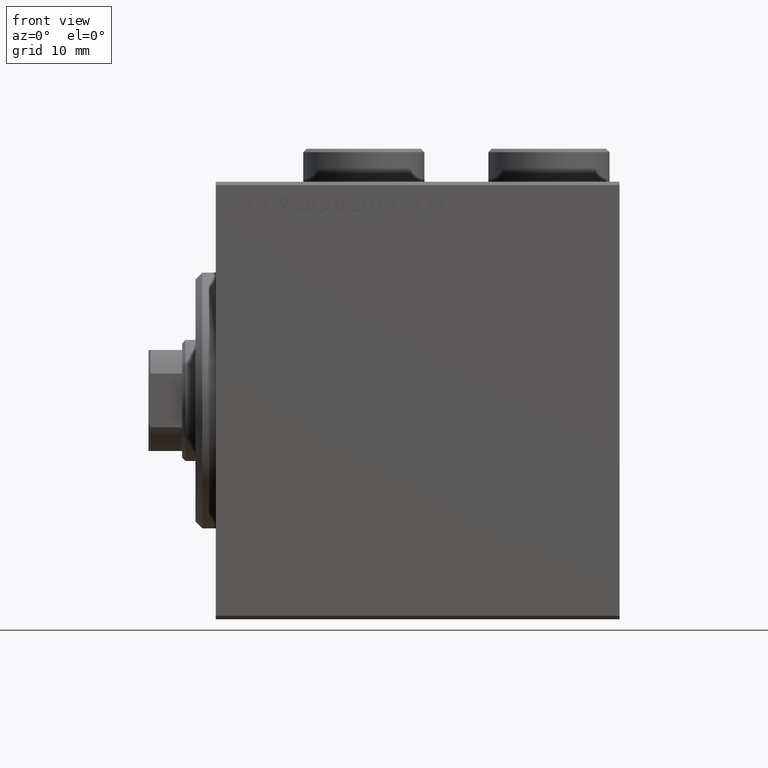
[diagram: clean part render]
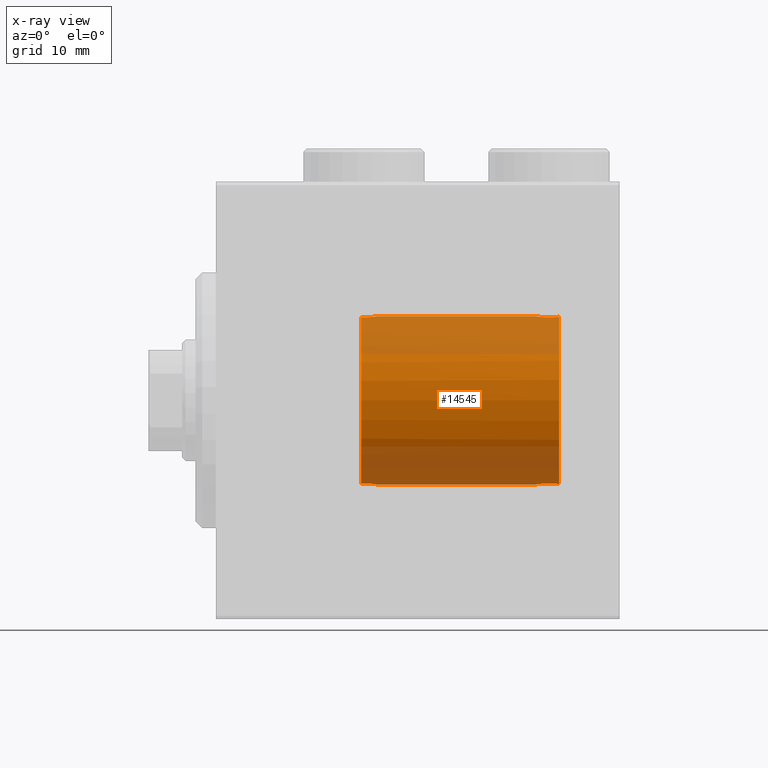
[diagram: x-ray — body ghosted, one internal face saturated and labeled with its STEP entity id]
A machine part, front view, then the same camera in x-ray: the body is ghosted and one INTERNAL B-rep face — a face not visible from any outside direction — is saturated and labeled: STEP entity #14545.
In plain terms, the highlighted cylindrical surface (partial cylindrical patch) has radius 12.5 mm, axis along (-1, -0, -0).
Its self-contained STEP definition (entity closure, byte-faithful):
#64 = CARTESIAN_POINT ( 'NONE',  ( 48.98217734449560368, -1.942370230151947874, -12.34837774004982869 ) ) ;
#536 = CARTESIAN_POINT ( 'NONE',  ( 48.10833807546940477, -1.450617801495374115, 12.41618001124376569 ) ) ;
#550 = AXIS2_PLACEMENT_3D ( 'NONE', #27432, #3245, #23970 ) ;
#1206 = CARTESIAN_POINT ( 'NONE',  ( 47.74046257760226553, -0.9719654118822560473, 12.46326730267306893 ) ) ;
#1386 = CARTESIAN_POINT ( 'NONE',  ( 23.74294733412908087, -0.9918218938939140639, 12.46129877372112560 ) ) ;
#2210 = CARTESIAN_POINT ( 'NONE',  ( 50.86753843343830539, -1.473072954130703716, -12.41381773772906527 ) ) ;
#2747 = VECTOR ( 'NONE', #44399, 1000.000000000000000 ) ;
#3245 = DIRECTION ( 'NONE',  ( -1.000000000000000000, 0.000000000000000000, 0.000000000000000000 ) ) ;
#3287 = CARTESIAN_POINT ( 'NONE',  ( 47.74095410924028471, -0.9729659830398046383, -12.46319390912297642 ) ) ;
#3914 = ORIENTED_EDGE ( 'NONE', *, *, #21186, .T. ) ;
#5287 = CARTESIAN_POINT ( 'NONE',  ( 23.02541152124766199, -1.723401116109633424, 12.38080331456884053 ) ) ;
#5608 = CARTESIAN_POINT ( 'NONE',  ( 23.48330282664397828, -1.349602160395881656, -12.42747329027376324 ) ) ;
#5881 = CARTESIAN_POINT ( 'NONE',  ( 49.58383975051394543, -2.008412574410691320, -12.33760202391980165 ) ) ;
#6121 = CARTESIAN_POINT ( 'NONE',  ( 49.18080577472711923, -1.984657456431631495, -12.34144560212908281 ) ) ;
#6297 = CARTESIAN_POINT ( 'NONE',  ( 21.60000000000000142, -1.959591794226549277, -12.34544450394557558 ) ) ;
#6970 = CARTESIAN_POINT ( 'NONE',  ( 49.78760707246136263, -1.989402790922017106, -12.34077351860467253 ) ) ;
#7188 = CARTESIAN_POINT ( 'NONE',  ( 47.97135785540805131, -1.305434197395114015, -12.43276746250906051 ) ) ;
#7440 = CARTESIAN_POINT ( 'NONE',  ( 48.42738723239509113, -1.700151984080955359, 12.38447824127646157 ) ) ;
#7484 = CARTESIAN_POINT ( 'NONE',  ( 51.00000000000000711, -1.322875655532297579, -12.42980289465605459 ) ) ;
#7800 = VERTEX_POINT ( 'NONE', #7484 ) ;
#8562 = CARTESIAN_POINT ( 'NONE',  ( 50.86744664609396693, -1.473177031196406528, 12.41380666104364927 ) ) ;
#8608 = CARTESIAN_POINT ( 'NONE',  ( 21.60000000000000142, 0.000000000000000000, 0.000000000000000000 ) ) ;
#8740 = CARTESIAN_POINT ( 'NONE',  ( 23.48219734671673464, -1.350829357940619868, 12.42734021317595960 ) ) ;
#8794 = CARTESIAN_POINT ( 'NONE',  ( 49.58327474022404147, -2.008486068678527303, 12.33759019476317320 ) ) ;
#8977 = CARTESIAN_POINT ( 'NONE',  ( 24.00000000000000711, -0.2984775718359609087, 12.50000000000000178 ) ) ;
#10432 = CARTESIAN_POINT ( 'NONE',  ( 47.53135420449311255, -0.4063377816220735683, -12.49487917148008975 ) ) ;
#10982 = FACE_OUTER_BOUND ( 'NONE', #37358, .T. ) ;
#11137 = ORIENTED_EDGE ( 'NONE', *, *, #24643, .T. ) ;
#11849 = ORIENTED_EDGE ( 'NONE', *, *, #25434, .F. ) ;
#12425 = CARTESIAN_POINT ( 'NONE',  ( 22.18929723264292875, -1.996555189909668071, 12.33952093030028863 ) ) ;
#12757 = CARTESIAN_POINT ( 'NONE',  ( 23.93314724436488916, -0.5913231332011221753, -12.48885326101652815 ) ) ;
#12861 = VERTEX_POINT ( 'NONE', #28241 ) ;
#13022 = CARTESIAN_POINT ( 'NONE',  ( 47.65211717059433738, -0.7912052260496477141, -12.47642217115676999 ) ) ;
#13219 = CARTESIAN_POINT ( 'NONE',  ( 21.88865765798350793, -2.018513791927082579, -12.33609181817095823 ) ) ;
#13268 = CARTESIAN_POINT ( 'NONE',  ( 51.00000000000000711, 0.000000000000000000, 12.50000000000000000 ) ) ;
#13896 = VERTEX_POINT ( 'NONE', #33307 ) ;
#14071 = VERTEX_POINT ( 'NONE', #34451 ) ;
#14545 = ADVANCED_FACE ( 'NONE', ( #10982 ), #34976, .F. ) ;
#14908 = CARTESIAN_POINT ( 'NONE',  ( 47.49999999999999289, -7.266434456262306043E-23, 12.50000000000000000 ) ) ;
#15041 = VERTEX_POINT ( 'NONE', #17955 ) ;
#15575 = VECTOR ( 'NONE', #27311, 1000.000000000000000 ) ;
#16159 = CARTESIAN_POINT ( 'NONE',  ( 50.17771318596242480, -1.892444135111798875, 12.35601370027699630 ) ) ;
#16259 = VERTEX_POINT ( 'NONE', #14908 ) ;
#16660 = CARTESIAN_POINT ( 'NONE',  ( 23.66470425100231623, -1.118200797518082767, -12.45042751668564307 ) ) ;
#17783 = CARTESIAN_POINT ( 'NONE',  ( 48.42854688107839678, -1.700931018996106436, -12.38437300663065876 ) ) ;
#17955 = CARTESIAN_POINT ( 'NONE',  ( 51.00000000000000711, -1.322875655532295580, 12.42980289465605281 ) ) ;
#18192 = CIRCLE ( 'NONE', #35887, 12.50000000000000000 ) ;
#18527 = B_SPLINE_CURVE_WITH_KNOTS ( 'NONE', 3,
 ( #38791, #2210, #44608, #27923, #28159, #6970, #5881, #6121, #64, #27070, #17783, #23620, #7188, #3287, #13022, #10432, #41164, #45454 ),
 .UNSPECIFIED., .F., .F.,
 ( 4, 2, 2, 2, 2, 2, 2, 2, 4 ),
 ( 0.007704009012989673083, 0.008306559026792689412, 0.008909109040595705742, 0.009511659054398720337, 0.01011420906820173667, 0.01071675908200475300, 0.01131930909580776759, 0.01192185910961078392, 0.01252440912341380025 ),
 .UNSPECIFIED. ) ;
#18867 = CARTESIAN_POINT ( 'NONE',  ( 22.62167100186951885, -1.906644611147662038, 12.35378414576433848 ) ) ;
#20399 = CIRCLE ( 'NONE', #550, 12.50000000000000000 ) ;
#20400 = CARTESIAN_POINT ( 'NONE',  ( 51.00000000000000711, 1.530808498934191521E-15, -12.50000000000000000 ) ) ;
#21186 = EDGE_CURVE ( 'NONE', #7800, #12861, #18527, .T. ) ;
#21493 = ORIENTED_EDGE ( 'NONE', *, *, #22134, .F. ) ;
#22134 = EDGE_CURVE ( 'NONE', #16259, #13896, #44850, .T. ) ;
#22331 = CARTESIAN_POINT ( 'NONE',  ( 23.37953558611473426, -1.455618092656345786, 12.41531667514001569 ) ) ;
#22552 = CARTESIAN_POINT ( 'NONE',  ( 23.15003876050212384, -1.642970880560013613, 12.39191506028467771 ) ) ;
#22616 = ORIENTED_EDGE ( 'NONE', *, *, #40745, .T. ) ;
#22830 = CARTESIAN_POINT ( 'NONE',  ( 49.78641310403624232, -1.989624964857126699, 12.34073789792041254 ) ) ;
#23017 = CARTESIAN_POINT ( 'NONE',  ( 24.00000000000000000, 0.000000000000000000, 12.50000000000000000 ) ) ;
#23571 = CARTESIAN_POINT ( 'NONE',  ( 23.38053361785755513, -1.454745679850352635, -12.41542271870275016 ) ) ;
#23620 = CARTESIAN_POINT ( 'NONE',  ( 48.10873976546010056, -1.451059294866322347, -12.41613015482389493 ) ) ;
#23970 = DIRECTION ( 'NONE',  ( 0.000000000000000000, 0.000000000000000000, 1.000000000000000000 ) ) ;
#24118 = DIRECTION ( 'NONE',  ( -1.000000000000000000, -0.000000000000000000, -0.000000000000000000 ) ) ;
#24643 = EDGE_CURVE ( 'NONE', #25498, #14071, #18192, .T. ) ;
#24716 = EDGE_CURVE ( 'NONE', #32439, #25498, #25608, .T. ) ;
#25082 = EDGE_CURVE ( 'NONE', #12861, #32439, #31243, .T. ) ;
#25434 = EDGE_CURVE ( 'NONE', #7800, #15041, #20399, .T. ) ;
#25498 = VERTEX_POINT ( 'NONE', #26690 ) ;
#25608 = B_SPLINE_CURVE_WITH_KNOTS ( 'NONE', 3,
 ( #44565, #27025, #12757, #30961, #16660, #5608, #23571, #37680, #26796, #30725, #37909, #44800, #13219, #6297 ),
 .UNSPECIFIED., .F., .F.,
 ( 4, 2, 2, 2, 2, 2, 4 ),
 ( 0.006262980370572176700, 0.007146313903596190550, 0.007587980670108197476, 0.008029647436620204401, 0.008471314203132211326, 0.008912980969644218252, 0.009796314502668242510 ),
 .UNSPECIFIED. ) ;
#26468 = CARTESIAN_POINT ( 'NONE',  ( 22.76259408886607361, -1.854731907996921780, 12.36181101904186619 ) ) ;
#26690 = CARTESIAN_POINT ( 'NONE',  ( 21.60000000000000142, -1.959591794226549277, -12.34544450394557558 ) ) ;
#26796 = CARTESIAN_POINT ( 'NONE',  ( 23.02642885203126610, -1.722812217822935477, -12.38088609841119592 ) ) ;
#27025 = CARTESIAN_POINT ( 'NONE',  ( 24.00000000000000355, -0.2948070512941219912, -12.50000000000000178 ) ) ;
#27070 = CARTESIAN_POINT ( 'NONE',  ( 48.60362877792451286, -1.799294596715347971, -12.37003532234930603 ) ) ;
#27311 = DIRECTION ( 'NONE',  ( -1.000000000000000000, -0.000000000000000000, -0.000000000000000000 ) ) ;
#27432 = CARTESIAN_POINT ( 'NONE',  ( 51.00000000000000711, 0.000000000000000000, 0.000000000000000000 ) ) ;
#27613 = CARTESIAN_POINT ( 'NONE',  ( 24.00000000000000000, 1.530808426277417854E-15, -12.50000000000000000 ) ) ;
#27923 = CARTESIAN_POINT ( 'NONE',  ( 50.36746739686750374, -1.813190807807119720, -12.36824070762423133 ) ) ;
#28159 = CARTESIAN_POINT ( 'NONE',  ( 50.17791464597166851, -1.892319482919101681, -12.35603259450975244 ) ) ;
#28241 = CARTESIAN_POINT ( 'NONE',  ( 47.49999999999999289, 1.530808498934191127E-15, -12.50000000000000000 ) ) ;
#28396 = CARTESIAN_POINT ( 'NONE',  ( 47.53093414927128180, -0.4041946641516754313, 12.49494672909561466 ) ) ;
#29076 = CARTESIAN_POINT ( 'NONE',  ( 47.49999999999997868, -0.2012103680131457906, 12.50000000000000000 ) ) ;
#29975 = EDGE_CURVE ( 'NONE', #16259, #15041, #39653, .T. ) ;
#30036 = DIRECTION ( 'NONE',  ( 0.000000000000000000, 0.000000000000000000, 1.000000000000000000 ) ) ;
#30216 = CARTESIAN_POINT ( 'NONE',  ( 50.36681904443987889, -1.813547105335512333, 12.36819009826685267 ) ) ;
#30725 = CARTESIAN_POINT ( 'NONE',  ( 22.76332311719972523, -1.854447611799994622, -12.36185449577857298 ) ) ;
#30961 = CARTESIAN_POINT ( 'NONE',  ( 23.74378402848257252, -0.9904027418544105732, -12.46141573476677067 ) ) ;
#31243 = LINE ( 'NONE', #20400, #2747 ) ;
#31960 = DIRECTION ( 'NONE',  ( 0.000000000000000000, 0.000000000000000000, 1.000000000000000000 ) ) ;
#32097 = CARTESIAN_POINT ( 'NONE',  ( 48.98184397579840521, -1.942358223559711661, 12.34838176837820889 ) ) ;
#32439 = VERTEX_POINT ( 'NONE', #27613 ) ;
#32775 = CARTESIAN_POINT ( 'NONE',  ( 47.65111687131940243, -0.7888122891505918721, 12.47657173513424489 ) ) ;
#33183 = CARTESIAN_POINT ( 'NONE',  ( 21.60000000000000142, -1.959591794226551498, 12.34544450394557380 ) ) ;
#33307 = CARTESIAN_POINT ( 'NONE',  ( 24.00000000000000000, 0.000000000000000000, 12.50000000000000000 ) ) ;
#34451 = CARTESIAN_POINT ( 'NONE',  ( 21.60000000000000142, -1.959591794226551498, 12.34544450394557380 ) ) ;
#34781 = B_SPLINE_CURVE_WITH_KNOTS ( 'NONE', 3,
 ( #33183, #43329, #40334, #12425, #43784, #18867, #26468, #5287, #22552, #22331, #8740, #36657, #1386, #40563, #8977, #23017 ),
 .UNSPECIFIED., .F., .F.,
 ( 4, 2, 2, 2, 2, 2, 2, 4 ),
 ( 0.008993949189123159188, 0.009435256680909488020, 0.009876564172695818586, 0.01031787166448214742, 0.01075917915626847798, 0.01120048664805480682, 0.01164179413984113738, 0.01252440912341379504 ),
 .UNSPECIFIED. ) ;
#34976 = CYLINDRICAL_SURFACE ( 'NONE', #37640, 12.50000000000000000 ) ;
#35573 = CARTESIAN_POINT ( 'NONE',  ( 48.60199259921450476, -1.798561603665806308, 12.37014405429720476 ) ) ;
#35887 = AXIS2_PLACEMENT_3D ( 'NONE', #8608, #43194, #30036 ) ;
#36066 = ORIENTED_EDGE ( 'NONE', *, *, #24716, .T. ) ;
#36259 = CARTESIAN_POINT ( 'NONE',  ( 47.49999999999999289, -7.266434456262306043E-23, 12.50000000000000000 ) ) ;
#36478 = CARTESIAN_POINT ( 'NONE',  ( 51.00000000000000711, -1.322875655532295580, 12.42980289465605281 ) ) ;
#36657 = CARTESIAN_POINT ( 'NONE',  ( 23.66392509199964067, -1.119375815846664235, 12.45032218503570398 ) ) ;
#36708 = CARTESIAN_POINT ( 'NONE',  ( 49.17926163899189618, -1.984459088571224994, 12.34147763550941868 ) ) ;
#36943 = CARTESIAN_POINT ( 'NONE',  ( 50.71007472988200249, -1.605007011565836361, 12.39697672430507147 ) ) ;
#37358 = EDGE_LOOP ( 'NONE', ( #3914, #43829, #36066, #11137, #22616, #21493, #41497, #11849 ) ) ;
#37640 = AXIS2_PLACEMENT_3D ( 'NONE', #39130, #24118, #31960 ) ;
#37680 = CARTESIAN_POINT ( 'NONE',  ( 23.14996846186599555, -1.643085694597724800, -12.39190363412062901 ) ) ;
#37909 = CARTESIAN_POINT ( 'NONE',  ( 22.62209686606905379, -1.906493850659870537, -12.35380743149953631 ) ) ;
#38791 = CARTESIAN_POINT ( 'NONE',  ( 51.00000000000000711, -1.322875655532297579, -12.42980289465605459 ) ) ;
#39130 = CARTESIAN_POINT ( 'NONE',  ( 51.00000000000000711, 0.000000000000000000, 0.000000000000000000 ) ) ;
#39653 = B_SPLINE_CURVE_WITH_KNOTS ( 'NONE', 3,
 ( #36259, #29076, #28396, #32775, #1206, #43378, #536, #7440, #35573, #32097, #36708, #8794, #22830, #16159, #30216, #36943, #8562, #36478 ),
 .UNSPECIFIED., .F., .F.,
 ( 4, 2, 2, 2, 2, 2, 2, 2, 4 ),
 ( 0.006262980370572174098, 0.006865869156569327954, 0.007468757942566480942, 0.008071646728563634798, 0.008674535514560788654, 0.009277424300557942510, 0.009880313086555094632, 0.01048320187255224849, 0.01108609065854940234 ),
 .UNSPECIFIED. ) ;
#40334 = CARTESIAN_POINT ( 'NONE',  ( 21.89226596217898191, -2.002613154290233677, 12.33853921539895460 ) ) ;
#40563 = CARTESIAN_POINT ( 'NONE',  ( 23.93225181751675734, -0.5938915967773831239, 12.48871506440437784 ) ) ;
#40745 = EDGE_CURVE ( 'NONE', #14071, #13896, #34781, .T. ) ;
#41164 = CARTESIAN_POINT ( 'NONE',  ( 47.50000000000000000, -0.2037668387428292205, -12.50000000000000178 ) ) ;
#41497 = ORIENTED_EDGE ( 'NONE', *, *, #29975, .T. ) ;
#43194 = DIRECTION ( 'NONE',  ( -1.000000000000000000, 0.000000000000000000, 0.000000000000000000 ) ) ;
#43329 = CARTESIAN_POINT ( 'NONE',  ( 21.74406309532660586, -1.988998550419558864, 12.34077677099256398 ) ) ;
#43378 = CARTESIAN_POINT ( 'NONE',  ( 47.96998392213196638, -1.303740581626146033, 12.43294048548436415 ) ) ;
#43784 = CARTESIAN_POINT ( 'NONE',  ( 22.33515454227092789, -1.977230371145209498, 12.34268351910465356 ) ) ;
#43829 = ORIENTED_EDGE ( 'NONE', *, *, #25082, .T. ) ;
#44399 = DIRECTION ( 'NONE',  ( -1.000000000000000000, -0.000000000000000000, -0.000000000000000000 ) ) ;
#44565 = CARTESIAN_POINT ( 'NONE',  ( 24.00000000000000000, 1.530808426277417854E-15, -12.50000000000000000 ) ) ;
#44608 = CARTESIAN_POINT ( 'NONE',  ( 50.70997495299883440, -1.605029969583056770, -12.39697212645046243 ) ) ;
#44800 = CARTESIAN_POINT ( 'NONE',  ( 22.19280044267752317, -2.012391920777528931, -12.33715470381634027 ) ) ;
#44850 = LINE ( 'NONE', #13268, #15575 ) ;
#45454 = CARTESIAN_POINT ( 'NONE',  ( 47.49999999999999289, 1.530808498934191127E-15, -12.50000000000000000 ) ) ;